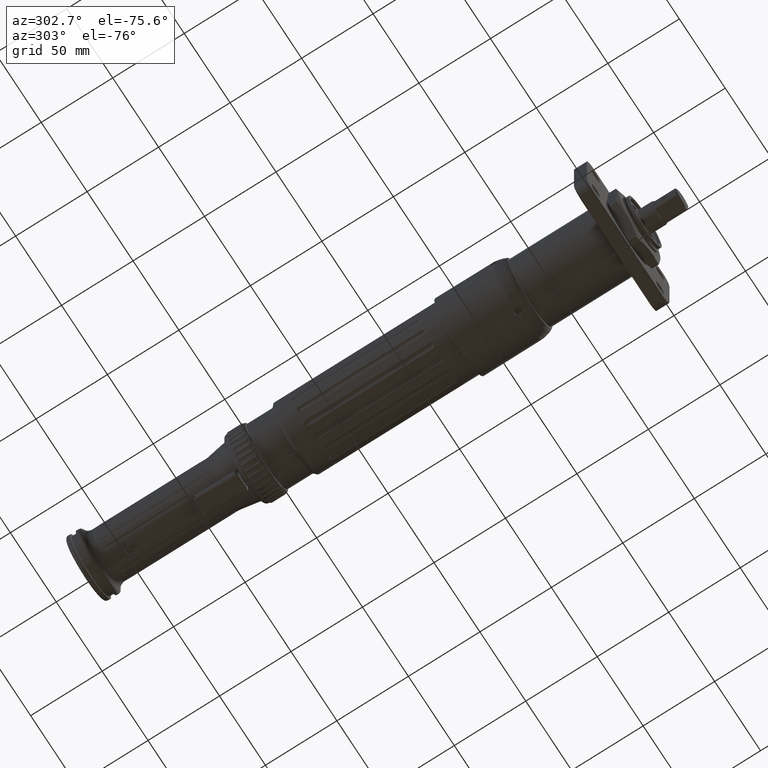
[diagram: clean part render]
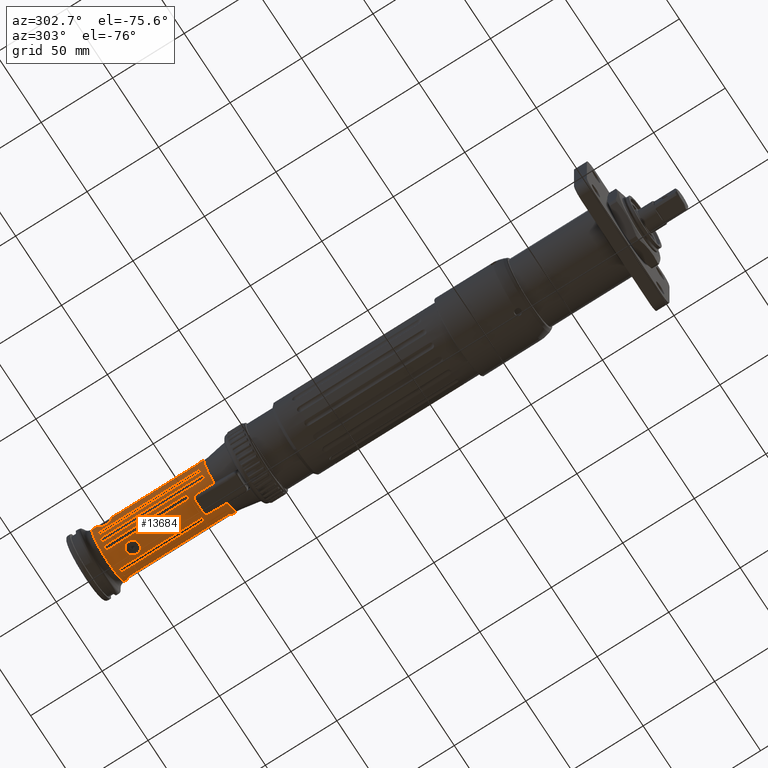
[diagram: same view with one face highlighted and labeled with its STEP entity id]
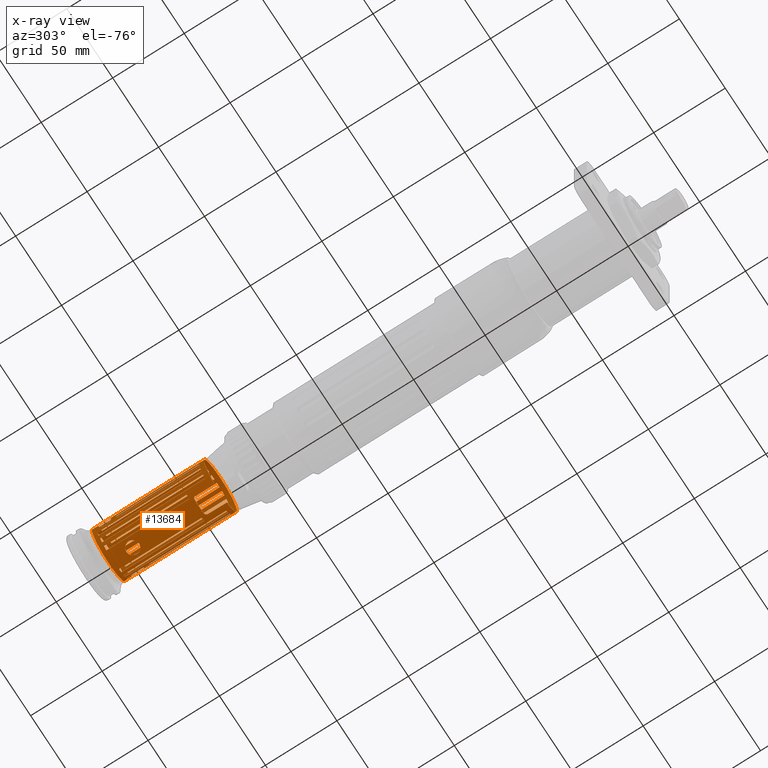
[diagram: x-ray of the same camera — body ghosted, the highlighted face saturated]
A machine part, auxiliary view. The second image highlights one B-rep face of the part: STEP entity #13684.
The next image is the same camera in x-ray: the body ghosted, the highlighted face saturated — about 0% of this face is hidden behind the body in this view.
In plain terms, the highlighted cylindrical surface (bore or boss wall) has radius 18 mm, axis along (-0, 1, -0).
Its self-contained STEP definition (entity closure, byte-faithful):
#123=LINE('',#20876,#866);
#475=LINE('',#23682,#1218);
#550=LINE('',#24184,#1293);
#554=LINE('',#24196,#1297);
#565=LINE('',#24623,#1308);
#585=LINE('',#24829,#1328);
#587=LINE('',#24834,#1330);
#590=LINE('',#24845,#1333);
#595=LINE('',#24854,#1338);
#599=LINE('',#24867,#1342);
#601=LINE('',#24872,#1344);
#606=LINE('',#24886,#1349);
#608=LINE('',#24891,#1351);
#613=LINE('',#24905,#1356);
#615=LINE('',#24910,#1358);
#620=LINE('',#24924,#1363);
#622=LINE('',#24929,#1365);
#627=LINE('',#24943,#1370);
#629=LINE('',#24948,#1372);
#634=LINE('',#24962,#1377);
#636=LINE('',#24967,#1379);
#641=LINE('',#24981,#1384);
#643=LINE('',#24986,#1386);
#646=LINE('',#24996,#1389);
#651=LINE('',#25010,#1394);
#653=LINE('',#25015,#1396);
#658=LINE('',#25029,#1401);
#660=LINE('',#25034,#1403);
#665=LINE('',#25048,#1408);
#667=LINE('',#25053,#1410);
#672=LINE('',#25067,#1415);
#674=LINE('',#25072,#1417);
#679=LINE('',#25086,#1422);
#681=LINE('',#25091,#1424);
#686=LINE('',#25105,#1429);
#688=LINE('',#25110,#1431);
#693=LINE('',#25124,#1436);
#695=LINE('',#25129,#1438);
#700=LINE('',#25143,#1443);
#702=LINE('',#25148,#1445);
#866=VECTOR('',#15994,10.);
#1218=VECTOR('',#17770,10.);
#1293=VECTOR('',#18387,10.);
#1297=VECTOR('',#18399,10.);
#1308=VECTOR('',#18494,10.);
#1328=VECTOR('',#18598,10.);
#1330=VECTOR('',#18602,10.);
#1333=VECTOR('',#18615,10.);
#1338=VECTOR('',#18622,10.);
#1342=VECTOR('',#18636,10.);
#1344=VECTOR('',#18640,10.);
#1349=VECTOR('',#18655,10.);
#1351=VECTOR('',#18659,10.);
#1356=VECTOR('',#18674,10.);
#1358=VECTOR('',#18678,10.);
#1363=VECTOR('',#18693,10.);
#1365=VECTOR('',#18697,10.);
#1370=VECTOR('',#18712,10.);
#1372=VECTOR('',#18716,10.);
#1377=VECTOR('',#18731,10.);
#1379=VECTOR('',#18735,10.);
#1384=VECTOR('',#18750,10.);
#1386=VECTOR('',#18754,10.);
#1389=VECTOR('',#18767,10.);
#1394=VECTOR('',#18782,10.);
#1396=VECTOR('',#18786,10.);
#1401=VECTOR('',#18801,10.);
#1403=VECTOR('',#18805,10.);
#1408=VECTOR('',#18820,10.);
#1410=VECTOR('',#18824,10.);
#1415=VECTOR('',#18839,10.);
#1417=VECTOR('',#18843,10.);
#1422=VECTOR('',#18858,10.);
#1424=VECTOR('',#18862,10.);
#1429=VECTOR('',#18877,10.);
#1431=VECTOR('',#18881,10.);
#1436=VECTOR('',#18896,10.);
#1438=VECTOR('',#18900,10.);
#1443=VECTOR('',#18915,10.);
#1445=VECTOR('',#18919,10.);
#1917=CYLINDRICAL_SURFACE('',#15257,18.);
#2014=CIRCLE('',#14076,18.);
#2281=CIRCLE('',#14457,18.);
#2623=CIRCLE('',#15109,18.);
#2638=CIRCLE('',#15152,18.);
#2639=CIRCLE('',#15154,18.);
#2640=CIRCLE('',#15158,18.);
#2641=CIRCLE('',#15160,18.);
#2642=CIRCLE('',#15164,18.);
#2643=CIRCLE('',#15166,18.);
#2644=CIRCLE('',#15170,18.);
#2645=CIRCLE('',#15172,18.);
#2646=CIRCLE('',#15176,18.);
#2647=CIRCLE('',#15178,18.);
#2648=CIRCLE('',#15182,18.);
#2649=CIRCLE('',#15184,18.);
#2650=CIRCLE('',#15188,18.);
#2651=CIRCLE('',#15190,18.);
#2652=CIRCLE('',#15194,18.);
#2653=CIRCLE('',#15196,18.);
#2654=CIRCLE('',#15200,18.);
#2655=CIRCLE('',#15202,18.);
#2656=CIRCLE('',#15205,18.);
#2657=CIRCLE('',#15207,18.);
#2658=CIRCLE('',#15211,18.);
#2659=CIRCLE('',#15213,18.);
#2660=CIRCLE('',#15217,18.);
#2661=CIRCLE('',#15219,18.);
#2662=CIRCLE('',#15223,18.);
#2663=CIRCLE('',#15225,18.);
#2664=CIRCLE('',#15229,18.);
#2665=CIRCLE('',#15231,18.);
#2666=CIRCLE('',#15235,18.);
#2667=CIRCLE('',#15237,18.);
#2668=CIRCLE('',#15241,18.);
#2669=CIRCLE('',#15243,18.);
#2670=CIRCLE('',#15247,18.);
#2671=CIRCLE('',#15249,18.);
#2672=CIRCLE('',#15253,18.);
#2673=CIRCLE('',#15255,18.);
#3493=FACE_BOUND('',#5130,.T.);
#3494=FACE_BOUND('',#5131,.T.);
#3495=FACE_BOUND('',#5132,.T.);
#3496=FACE_BOUND('',#5133,.T.);
#3497=FACE_BOUND('',#5134,.T.);
#3498=FACE_BOUND('',#5135,.T.);
#3499=FACE_BOUND('',#5136,.T.);
#3500=FACE_BOUND('',#5137,.T.);
#3501=FACE_BOUND('',#5138,.T.);
#3502=FACE_BOUND('',#5139,.T.);
#3503=FACE_BOUND('',#5140,.T.);
#3504=FACE_BOUND('',#5141,.T.);
#3505=FACE_BOUND('',#5142,.T.);
#3506=FACE_BOUND('',#5143,.T.);
#3507=FACE_BOUND('',#5144,.T.);
#3508=FACE_BOUND('',#5145,.T.);
#3509=FACE_BOUND('',#5146,.T.);
#3510=FACE_BOUND('',#5147,.T.);
#3511=FACE_BOUND('',#5148,.T.);
#3512=FACE_BOUND('',#5149,.T.);
#3513=FACE_BOUND('',#5150,.T.);
#3514=FACE_BOUND('',#5151,.T.);
#4086=FACE_OUTER_BOUND('',#5129,.T.);
#5129=EDGE_LOOP('',(#11150,#11151,#11152,#11153,#11154,#11155,#11156,#11157));
#5130=EDGE_LOOP('',(#11158,#11159));
#5131=EDGE_LOOP('',(#11160,#11161));
#5132=EDGE_LOOP('',(#11162,#11163));
#5133=EDGE_LOOP('',(#11164,#11165,#11166,#11167));
#5134=EDGE_LOOP('',(#11168,#11169,#11170,#11171));
#5135=EDGE_LOOP('',(#11172,#11173,#11174,#11175));
#5136=EDGE_LOOP('',(#11176,#11177,#11178,#11179));
#5137=EDGE_LOOP('',(#11180,#11181,#11182,#11183));
#5138=EDGE_LOOP('',(#11184,#11185,#11186,#11187));
#5139=EDGE_LOOP('',(#11188,#11189,#11190,#11191));
#5140=EDGE_LOOP('',(#11192,#11193,#11194,#11195));
#5141=EDGE_LOOP('',(#11196,#11197,#11198,#11199));
#5142=EDGE_LOOP('',(#11200,#11201,#11202,#11203));
#5143=EDGE_LOOP('',(#11204,#11205,#11206,#11207));
#5144=EDGE_LOOP('',(#11208,#11209,#11210,#11211));
#5145=EDGE_LOOP('',(#11212,#11213,#11214,#11215));
#5146=EDGE_LOOP('',(#11216,#11217,#11218,#11219));
#5147=EDGE_LOOP('',(#11220,#11221,#11222,#11223));
#5148=EDGE_LOOP('',(#11224,#11225,#11226,#11227));
#5149=EDGE_LOOP('',(#11228,#11229,#11230,#11231));
#5150=EDGE_LOOP('',(#11232,#11233,#11234,#11235));
#5151=EDGE_LOOP('',(#11236));
#5481=B_SPLINE_CURVE_WITH_KNOTS('',3,(#20845,#20846,#20847,#20848,#20849,
#20850,#20851,#20852,#20853,#20854),.UNSPECIFIED.,.F.,.F.,(4,2,2,2,4),(0.305642386572825,
0.385374742263691,0.465107097954556,0.540499165419982,0.615891232885407),
 .UNSPECIFIED.);
#5482=B_SPLINE_CURVE_WITH_KNOTS('',3,(#20863,#20864,#20865,#20866,#20867,
#20868,#20869,#20870,#20871,#20872),.UNSPECIFIED.,.F.,.F.,(4,2,2,2,4),(0.615891232885407,
0.691283300350833,0.766675367816259,0.846407723507124,0.926140079197989),
 .UNSPECIFIED.);
#5548=B_SPLINE_CURVE_WITH_KNOTS('',3,(#24676,#24677,#24678,#24679,#24680,
#24681,#24682,#24683,#24684,#24685,#24686,#24687,#24688,#24689,#24690,#24691,
#24692,#24693),.UNSPECIFIED.,.F.,.F.,(4,2,2,2,2,2,2,2,4),(0.681159195238395,
0.851437088441764,1.02171498164513,1.19201668606096,1.36231839047679,1.53262009489262,
1.70292179930845,1.87319969251182,2.04347758571518),.UNSPECIFIED.);
#5549=B_SPLINE_CURVE_WITH_KNOTS('',3,(#24694,#24695,#24696,#24697,#24698,
#24699,#24700,#24701,#24702,#24703,#24704,#24705,#24706,#24707,#24708,#24709,
#24710,#24711,#24712),.UNSPECIFIED.,.F.,.F.,(4,2,2,2,3,2,2,2,4),(2.04347758571518,
2.21375547891855,2.38403337212192,2.55433507653775,2.72463678095358,2.89493848536941,
3.06524018978524,3.23551808298861,3.40579597619198),.UNSPECIFIED.);
#5550=B_SPLINE_CURVE_WITH_KNOTS('',3,(#24719,#24720,#24721,#24722,#24723,
#24724,#24725,#24726,#24727,#24728,#24729,#24730,#24731,#24732,#24733,#24734,
#24735,#24736),.UNSPECIFIED.,.F.,.F.,(4,2,2,2,2,2,2,2,4),(0.681159195238395,
0.851437088441765,1.02171498164513,1.19201668606096,1.36231839047679,1.53262009489262,
1.70292179930844,1.87319969251181,2.04347758571518),.UNSPECIFIED.);
#5551=B_SPLINE_CURVE_WITH_KNOTS('',3,(#24737,#24738,#24739,#24740,#24741,
#24742,#24743,#24744,#24745,#24746,#24747,#24748,#24749,#24750,#24751,#24752,
#24753,#24754,#24755),.UNSPECIFIED.,.F.,.F.,(4,2,2,2,3,2,2,2,4),(2.04347758571518,
2.21375547891855,2.38403337212192,2.55433507653775,2.72463678095358,2.89493848536941,
3.06524018978523,3.2355180829886,3.40579597619197),.UNSPECIFIED.);
#5552=B_SPLINE_CURVE_WITH_KNOTS('',3,(#24762,#24763,#24764,#24765,#24766,
#24767,#24768,#24769,#24770,#24771,#24772,#24773,#24774,#24775,#24776,#24777,
#24778,#24779),.UNSPECIFIED.,.F.,.F.,(4,2,2,2,2,2,2,2,4),(0.681159195238395,
0.851437088441764,1.02171498164513,1.19201668606096,1.36231839047679,1.53262009489262,
1.70292179930844,1.87319969251181,2.04347758571518),.UNSPECIFIED.);
#5553=B_SPLINE_CURVE_WITH_KNOTS('',3,(#24780,#24781,#24782,#24783,#24784,
#24785,#24786,#24787,#24788,#24789,#24790,#24791,#24792,#24793,#24794,#24795,
#24796,#24797,#24798),.UNSPECIFIED.,.F.,.F.,(4,2,2,2,3,2,2,2,4),(2.04347758571518,
2.21375547891855,2.38403337212192,2.55433507653775,2.72463678095358,2.89493848536941,
3.06524018978523,3.2355180829886,3.40579597619197),.UNSPECIFIED.);
#5633=VERTEX_POINT('',#20842);
#5634=VERTEX_POINT('',#20844);
#5635=VERTEX_POINT('',#20857);
#5636=VERTEX_POINT('',#20861);
#5637=VERTEX_POINT('',#20874);
#6088=VERTEX_POINT('',#22828);
#6324=VERTEX_POINT('',#23679);
#6325=VERTEX_POINT('',#23681);
#6480=VERTEX_POINT('',#24182);
#6481=VERTEX_POINT('',#24183);
#6485=VERTEX_POINT('',#24194);
#6525=VERTEX_POINT('',#24674);
#6526=VERTEX_POINT('',#24675);
#6528=VERTEX_POINT('',#24717);
#6529=VERTEX_POINT('',#24718);
#6531=VERTEX_POINT('',#24760);
#6532=VERTEX_POINT('',#24761);
#6536=VERTEX_POINT('',#24823);
#6538=VERTEX_POINT('',#24827);
#6539=VERTEX_POINT('',#24831);
#6540=VERTEX_POINT('',#24833);
#6542=VERTEX_POINT('',#24842);
#6543=VERTEX_POINT('',#24844);
#6545=VERTEX_POINT('',#24850);
#6546=VERTEX_POINT('',#24852);
#6548=VERTEX_POINT('',#24861);
#6550=VERTEX_POINT('',#24865);
#6551=VERTEX_POINT('',#24869);
#6552=VERTEX_POINT('',#24871);
#6554=VERTEX_POINT('',#24880);
#6556=VERTEX_POINT('',#24884);
#6557=VERTEX_POINT('',#24888);
#6558=VERTEX_POINT('',#24890);
#6560=VERTEX_POINT('',#24899);
#6562=VERTEX_POINT('',#24903);
#6563=VERTEX_POINT('',#24907);
#6564=VERTEX_POINT('',#24909);
#6566=VERTEX_POINT('',#24918);
#6568=VERTEX_POINT('',#24922);
#6569=VERTEX_POINT('',#24926);
#6570=VERTEX_POINT('',#24928);
#6572=VERTEX_POINT('',#24937);
#6574=VERTEX_POINT('',#24941);
#6575=VERTEX_POINT('',#24945);
#6576=VERTEX_POINT('',#24947);
#6578=VERTEX_POINT('',#24956);
#6580=VERTEX_POINT('',#24960);
#6581=VERTEX_POINT('',#24964);
#6582=VERTEX_POINT('',#24966);
#6584=VERTEX_POINT('',#24975);
#6586=VERTEX_POINT('',#24979);
#6587=VERTEX_POINT('',#24983);
#6588=VERTEX_POINT('',#24985);
#6589=VERTEX_POINT('',#24993);
#6590=VERTEX_POINT('',#24995);
#6592=VERTEX_POINT('',#25004);
#6594=VERTEX_POINT('',#25008);
#6595=VERTEX_POINT('',#25012);
#6596=VERTEX_POINT('',#25014);
#6598=VERTEX_POINT('',#25023);
#6600=VERTEX_POINT('',#25027);
#6601=VERTEX_POINT('',#25031);
#6602=VERTEX_POINT('',#25033);
#6604=VERTEX_POINT('',#25042);
#6606=VERTEX_POINT('',#25046);
#6607=VERTEX_POINT('',#25050);
#6608=VERTEX_POINT('',#25052);
#6610=VERTEX_POINT('',#25061);
#6612=VERTEX_POINT('',#25065);
#6613=VERTEX_POINT('',#25069);
#6614=VERTEX_POINT('',#25071);
#6616=VERTEX_POINT('',#25080);
#6618=VERTEX_POINT('',#25084);
#6619=VERTEX_POINT('',#25088);
#6620=VERTEX_POINT('',#25090);
#6622=VERTEX_POINT('',#25099);
#6624=VERTEX_POINT('',#25103);
#6625=VERTEX_POINT('',#25107);
#6626=VERTEX_POINT('',#25109);
#6628=VERTEX_POINT('',#25118);
#6630=VERTEX_POINT('',#25122);
#6631=VERTEX_POINT('',#25126);
#6632=VERTEX_POINT('',#25128);
#6634=VERTEX_POINT('',#25137);
#6636=VERTEX_POINT('',#25141);
#6637=VERTEX_POINT('',#25145);
#6638=VERTEX_POINT('',#25147);
#6875=EDGE_CURVE('',#5633,#5634,#5481,.T.);
#6878=EDGE_CURVE('',#5633,#5635,#2014,.T.);
#6880=EDGE_CURVE('',#5636,#5635,#5482,.T.);
#6882=EDGE_CURVE('',#5636,#5637,#123,.T.);
#7411=EDGE_CURVE('',#6088,#6088,#2281,.T.);
#7748=EDGE_CURVE('',#6325,#6324,#475,.T.);
#7994=EDGE_CURVE('',#6480,#6481,#550,.T.);
#8001=EDGE_CURVE('',#5637,#6485,#554,.T.);
#8050=EDGE_CURVE('',#6481,#5634,#565,.T.);
#8051=EDGE_CURVE('',#6480,#6485,#2623,.T.);
#8072=EDGE_CURVE('',#6525,#6526,#5548,.T.);
#8073=EDGE_CURVE('',#6526,#6525,#5549,.T.);
#8075=EDGE_CURVE('',#6528,#6529,#5550,.T.);
#8076=EDGE_CURVE('',#6529,#6528,#5551,.T.);
#8078=EDGE_CURVE('',#6531,#6532,#5552,.T.);
#8079=EDGE_CURVE('',#6532,#6531,#5553,.T.);
#8092=EDGE_CURVE('',#6536,#6538,#585,.T.);
#8094=EDGE_CURVE('',#6540,#6539,#587,.T.);
#8096=EDGE_CURVE('',#6538,#6540,#2638,.T.);
#8097=EDGE_CURVE('',#6539,#6536,#2639,.T.);
#8099=EDGE_CURVE('',#6543,#6542,#590,.T.);
#8104=EDGE_CURVE('',#6545,#6546,#595,.T.);
#8105=EDGE_CURVE('',#6542,#6545,#2640,.T.);
#8106=EDGE_CURVE('',#6546,#6543,#2641,.T.);
#8110=EDGE_CURVE('',#6548,#6550,#599,.T.);
#8112=EDGE_CURVE('',#6552,#6551,#601,.T.);
#8114=EDGE_CURVE('',#6550,#6552,#2642,.T.);
#8115=EDGE_CURVE('',#6551,#6548,#2643,.T.);
#8119=EDGE_CURVE('',#6554,#6556,#606,.T.);
#8121=EDGE_CURVE('',#6558,#6557,#608,.T.);
#8123=EDGE_CURVE('',#6556,#6558,#2644,.T.);
#8124=EDGE_CURVE('',#6557,#6554,#2645,.T.);
#8128=EDGE_CURVE('',#6560,#6562,#613,.T.);
#8130=EDGE_CURVE('',#6564,#6563,#615,.T.);
#8132=EDGE_CURVE('',#6562,#6564,#2646,.T.);
#8133=EDGE_CURVE('',#6563,#6560,#2647,.T.);
#8137=EDGE_CURVE('',#6566,#6568,#620,.T.);
#8139=EDGE_CURVE('',#6570,#6569,#622,.T.);
#8141=EDGE_CURVE('',#6568,#6570,#2648,.T.);
#8142=EDGE_CURVE('',#6569,#6566,#2649,.T.);
#8146=EDGE_CURVE('',#6572,#6574,#627,.T.);
#8148=EDGE_CURVE('',#6576,#6575,#629,.T.);
#8150=EDGE_CURVE('',#6574,#6576,#2650,.T.);
#8151=EDGE_CURVE('',#6575,#6572,#2651,.T.);
#8155=EDGE_CURVE('',#6578,#6580,#634,.T.);
#8157=EDGE_CURVE('',#6582,#6581,#636,.T.);
#8159=EDGE_CURVE('',#6580,#6582,#2652,.T.);
#8160=EDGE_CURVE('',#6581,#6578,#2653,.T.);
#8164=EDGE_CURVE('',#6584,#6586,#641,.T.);
#8166=EDGE_CURVE('',#6588,#6587,#643,.T.);
#8168=EDGE_CURVE('',#6586,#6588,#2654,.T.);
#8169=EDGE_CURVE('',#6587,#6584,#2655,.T.);
#8171=EDGE_CURVE('',#6590,#6589,#646,.T.);
#8173=EDGE_CURVE('',#6324,#6590,#2656,.T.);
#8174=EDGE_CURVE('',#6589,#6325,#2657,.T.);
#8178=EDGE_CURVE('',#6592,#6594,#651,.T.);
#8180=EDGE_CURVE('',#6596,#6595,#653,.T.);
#8182=EDGE_CURVE('',#6594,#6596,#2658,.T.);
#8183=EDGE_CURVE('',#6595,#6592,#2659,.T.);
#8187=EDGE_CURVE('',#6598,#6600,#658,.T.);
#8189=EDGE_CURVE('',#6602,#6601,#660,.T.);
#8191=EDGE_CURVE('',#6600,#6602,#2660,.T.);
#8192=EDGE_CURVE('',#6601,#6598,#2661,.T.);
#8196=EDGE_CURVE('',#6604,#6606,#665,.T.);
#8198=EDGE_CURVE('',#6608,#6607,#667,.T.);
#8200=EDGE_CURVE('',#6606,#6608,#2662,.T.);
#8201=EDGE_CURVE('',#6607,#6604,#2663,.T.);
#8205=EDGE_CURVE('',#6610,#6612,#672,.T.);
#8207=EDGE_CURVE('',#6614,#6613,#674,.T.);
#8209=EDGE_CURVE('',#6612,#6614,#2664,.T.);
#8210=EDGE_CURVE('',#6613,#6610,#2665,.T.);
#8214=EDGE_CURVE('',#6616,#6618,#679,.T.);
#8216=EDGE_CURVE('',#6620,#6619,#681,.T.);
#8218=EDGE_CURVE('',#6618,#6620,#2666,.T.);
#8219=EDGE_CURVE('',#6619,#6616,#2667,.T.);
#8223=EDGE_CURVE('',#6622,#6624,#686,.T.);
#8225=EDGE_CURVE('',#6626,#6625,#688,.T.);
#8227=EDGE_CURVE('',#6624,#6626,#2668,.T.);
#8228=EDGE_CURVE('',#6625,#6622,#2669,.T.);
#8232=EDGE_CURVE('',#6628,#6630,#693,.T.);
#8234=EDGE_CURVE('',#6632,#6631,#695,.T.);
#8236=EDGE_CURVE('',#6630,#6632,#2670,.T.);
#8237=EDGE_CURVE('',#6631,#6628,#2671,.T.);
#8241=EDGE_CURVE('',#6634,#6636,#700,.T.);
#8243=EDGE_CURVE('',#6638,#6637,#702,.T.);
#8245=EDGE_CURVE('',#6636,#6638,#2672,.T.);
#8246=EDGE_CURVE('',#6637,#6634,#2673,.T.);
#11150=ORIENTED_EDGE('',*,*,#8051,.F.);
#11151=ORIENTED_EDGE('',*,*,#7994,.T.);
#11152=ORIENTED_EDGE('',*,*,#8050,.T.);
#11153=ORIENTED_EDGE('',*,*,#6875,.F.);
#11154=ORIENTED_EDGE('',*,*,#6878,.T.);
#11155=ORIENTED_EDGE('',*,*,#6880,.F.);
#11156=ORIENTED_EDGE('',*,*,#6882,.T.);
#11157=ORIENTED_EDGE('',*,*,#8001,.T.);
#11158=ORIENTED_EDGE('',*,*,#8072,.T.);
#11159=ORIENTED_EDGE('',*,*,#8073,.T.);
#11160=ORIENTED_EDGE('',*,*,#8075,.T.);
#11161=ORIENTED_EDGE('',*,*,#8076,.T.);
#11162=ORIENTED_EDGE('',*,*,#8078,.T.);
#11163=ORIENTED_EDGE('',*,*,#8079,.T.);
#11164=ORIENTED_EDGE('',*,*,#8094,.T.);
#11165=ORIENTED_EDGE('',*,*,#8097,.T.);
#11166=ORIENTED_EDGE('',*,*,#8092,.T.);
#11167=ORIENTED_EDGE('',*,*,#8096,.T.);
#11168=ORIENTED_EDGE('',*,*,#8104,.T.);
#11169=ORIENTED_EDGE('',*,*,#8106,.T.);
#11170=ORIENTED_EDGE('',*,*,#8099,.T.);
#11171=ORIENTED_EDGE('',*,*,#8105,.T.);
#11172=ORIENTED_EDGE('',*,*,#8112,.T.);
#11173=ORIENTED_EDGE('',*,*,#8115,.T.);
#11174=ORIENTED_EDGE('',*,*,#8110,.T.);
#11175=ORIENTED_EDGE('',*,*,#8114,.T.);
#11176=ORIENTED_EDGE('',*,*,#8121,.T.);
#11177=ORIENTED_EDGE('',*,*,#8124,.T.);
#11178=ORIENTED_EDGE('',*,*,#8119,.T.);
#11179=ORIENTED_EDGE('',*,*,#8123,.T.);
#11180=ORIENTED_EDGE('',*,*,#8130,.T.);
#11181=ORIENTED_EDGE('',*,*,#8133,.T.);
#11182=ORIENTED_EDGE('',*,*,#8128,.T.);
#11183=ORIENTED_EDGE('',*,*,#8132,.T.);
#11184=ORIENTED_EDGE('',*,*,#8139,.T.);
#11185=ORIENTED_EDGE('',*,*,#8142,.T.);
#11186=ORIENTED_EDGE('',*,*,#8137,.T.);
#11187=ORIENTED_EDGE('',*,*,#8141,.T.);
#11188=ORIENTED_EDGE('',*,*,#8148,.T.);
#11189=ORIENTED_EDGE('',*,*,#8151,.T.);
#11190=ORIENTED_EDGE('',*,*,#8146,.T.);
#11191=ORIENTED_EDGE('',*,*,#8150,.T.);
#11192=ORIENTED_EDGE('',*,*,#8157,.T.);
#11193=ORIENTED_EDGE('',*,*,#8160,.T.);
#11194=ORIENTED_EDGE('',*,*,#8155,.T.);
#11195=ORIENTED_EDGE('',*,*,#8159,.T.);
#11196=ORIENTED_EDGE('',*,*,#8166,.T.);
#11197=ORIENTED_EDGE('',*,*,#8169,.T.);
#11198=ORIENTED_EDGE('',*,*,#8164,.T.);
#11199=ORIENTED_EDGE('',*,*,#8168,.T.);
#11200=ORIENTED_EDGE('',*,*,#8171,.T.);
#11201=ORIENTED_EDGE('',*,*,#8174,.T.);
#11202=ORIENTED_EDGE('',*,*,#7748,.T.);
#11203=ORIENTED_EDGE('',*,*,#8173,.T.);
#11204=ORIENTED_EDGE('',*,*,#8180,.T.);
#11205=ORIENTED_EDGE('',*,*,#8183,.T.);
#11206=ORIENTED_EDGE('',*,*,#8178,.T.);
#11207=ORIENTED_EDGE('',*,*,#8182,.T.);
#11208=ORIENTED_EDGE('',*,*,#8189,.T.);
#11209=ORIENTED_EDGE('',*,*,#8192,.T.);
#11210=ORIENTED_EDGE('',*,*,#8187,.T.);
#11211=ORIENTED_EDGE('',*,*,#8191,.T.);
#11212=ORIENTED_EDGE('',*,*,#8198,.T.);
#11213=ORIENTED_EDGE('',*,*,#8201,.T.);
#11214=ORIENTED_EDGE('',*,*,#8196,.T.);
#11215=ORIENTED_EDGE('',*,*,#8200,.T.);
#11216=ORIENTED_EDGE('',*,*,#8207,.T.);
#11217=ORIENTED_EDGE('',*,*,#8210,.T.);
#11218=ORIENTED_EDGE('',*,*,#8205,.T.);
#11219=ORIENTED_EDGE('',*,*,#8209,.T.);
#11220=ORIENTED_EDGE('',*,*,#8216,.T.);
#11221=ORIENTED_EDGE('',*,*,#8219,.T.);
#11222=ORIENTED_EDGE('',*,*,#8214,.T.);
#11223=ORIENTED_EDGE('',*,*,#8218,.T.);
#11224=ORIENTED_EDGE('',*,*,#8225,.T.);
#11225=ORIENTED_EDGE('',*,*,#8228,.T.);
#11226=ORIENTED_EDGE('',*,*,#8223,.T.);
#11227=ORIENTED_EDGE('',*,*,#8227,.T.);
#11228=ORIENTED_EDGE('',*,*,#8234,.T.);
#11229=ORIENTED_EDGE('',*,*,#8237,.T.);
#11230=ORIENTED_EDGE('',*,*,#8232,.T.);
#11231=ORIENTED_EDGE('',*,*,#8236,.T.);
#11232=ORIENTED_EDGE('',*,*,#8243,.T.);
#11233=ORIENTED_EDGE('',*,*,#8246,.T.);
#11234=ORIENTED_EDGE('',*,*,#8241,.T.);
#11235=ORIENTED_EDGE('',*,*,#8245,.T.);
#11236=ORIENTED_EDGE('',*,*,#7411,.F.);
#13684=ADVANCED_FACE('',(#4086,#3493,#3494,#3495,#3496,#3497,#3498,#3499,
#3500,#3501,#3502,#3503,#3504,#3505,#3506,#3507,#3508,#3509,#3510,#3511,
#3512,#3513,#3514),#1917,.T.);
#14076=AXIS2_PLACEMENT_3D('',#20859,#15986,#15987);
#14457=AXIS2_PLACEMENT_3D('',#22829,#16940,#16941);
#15109=AXIS2_PLACEMENT_3D('',#24625,#18497,#18498);
#15152=AXIS2_PLACEMENT_3D('',#24837,#18606,#18607);
#15154=AXIS2_PLACEMENT_3D('',#24839,#18610,#18611);
#15158=AXIS2_PLACEMENT_3D('',#24856,#18625,#18626);
#15160=AXIS2_PLACEMENT_3D('',#24858,#18629,#18630);
#15164=AXIS2_PLACEMENT_3D('',#24875,#18644,#18645);
#15166=AXIS2_PLACEMENT_3D('',#24877,#18648,#18649);
#15170=AXIS2_PLACEMENT_3D('',#24894,#18663,#18664);
#15172=AXIS2_PLACEMENT_3D('',#24896,#18667,#18668);
#15176=AXIS2_PLACEMENT_3D('',#24913,#18682,#18683);
#15178=AXIS2_PLACEMENT_3D('',#24915,#18686,#18687);
#15182=AXIS2_PLACEMENT_3D('',#24932,#18701,#18702);
#15184=AXIS2_PLACEMENT_3D('',#24934,#18705,#18706);
#15188=AXIS2_PLACEMENT_3D('',#24951,#18720,#18721);
#15190=AXIS2_PLACEMENT_3D('',#24953,#18724,#18725);
#15194=AXIS2_PLACEMENT_3D('',#24970,#18739,#18740);
#15196=AXIS2_PLACEMENT_3D('',#24972,#18743,#18744);
#15200=AXIS2_PLACEMENT_3D('',#24989,#18758,#18759);
#15202=AXIS2_PLACEMENT_3D('',#24991,#18762,#18763);
#15205=AXIS2_PLACEMENT_3D('',#24999,#18771,#18772);
#15207=AXIS2_PLACEMENT_3D('',#25001,#18775,#18776);
#15211=AXIS2_PLACEMENT_3D('',#25018,#18790,#18791);
#15213=AXIS2_PLACEMENT_3D('',#25020,#18794,#18795);
#15217=AXIS2_PLACEMENT_3D('',#25037,#18809,#18810);
#15219=AXIS2_PLACEMENT_3D('',#25039,#18813,#18814);
#15223=AXIS2_PLACEMENT_3D('',#25056,#18828,#18829);
#15225=AXIS2_PLACEMENT_3D('',#25058,#18832,#18833);
#15229=AXIS2_PLACEMENT_3D('',#25075,#18847,#18848);
#15231=AXIS2_PLACEMENT_3D('',#25077,#18851,#18852);
#15235=AXIS2_PLACEMENT_3D('',#25094,#18866,#18867);
#15237=AXIS2_PLACEMENT_3D('',#25096,#18870,#18871);
#15241=AXIS2_PLACEMENT_3D('',#25113,#18885,#18886);
#15243=AXIS2_PLACEMENT_3D('',#25115,#18889,#18890);
#15247=AXIS2_PLACEMENT_3D('',#25132,#18904,#18905);
#15249=AXIS2_PLACEMENT_3D('',#25134,#18908,#18909);
#15253=AXIS2_PLACEMENT_3D('',#25151,#18923,#18924);
#15255=AXIS2_PLACEMENT_3D('',#25153,#18927,#18928);
#15257=AXIS2_PLACEMENT_3D('',#25159,#18934,#18935);
#15986=DIRECTION('center_axis',(-2.48189058167347E-16,1.,-4.53253714035936E-16));
#15987=DIRECTION('ref_axis',(1.72084568816899E-15,4.53253714035936E-16,
1.));
#15994=DIRECTION('',(2.48189058167347E-16,-1.,4.53253714035936E-16));
#16940=DIRECTION('center_axis',(-2.48189058167347E-16,1.,-4.53253714035936E-16));
#16941=DIRECTION('ref_axis',(-1.,-2.48189058167347E-16,1.72084568816899E-15));
#17770=DIRECTION('',(-2.48189058167347E-16,1.,-4.53253714035936E-16));
#18387=DIRECTION('',(-2.48189058167347E-16,1.,-4.53253714035936E-16));
#18399=DIRECTION('',(2.48189058167347E-16,-1.,4.53253714035936E-16));
#18494=DIRECTION('',(-2.48189058167347E-16,1.,-4.53253714035936E-16));
#18497=DIRECTION('center_axis',(2.48189058167347E-16,-1.,4.53253714035936E-16));
#18498=DIRECTION('ref_axis',(1.41468398838215E-15,4.53253714035936E-16,
1.));
#18598=DIRECTION('',(-2.48189058167347E-16,1.,-4.53253714035936E-16));
#18602=DIRECTION('',(2.48189058167347E-16,-1.,4.53253714035936E-16));
#18606=DIRECTION('center_axis',(-2.48189058167347E-16,1.,-4.53253714035936E-16));
#18607=DIRECTION('ref_axis',(1.72084568816899E-15,4.53253714035936E-16,
1.));
#18610=DIRECTION('center_axis',(2.48189058167347E-16,-1.,4.53253714035936E-16));
#18611=DIRECTION('ref_axis',(1.72084568816899E-15,4.53253714035936E-16,
1.));
#18615=DIRECTION('',(2.48189058167347E-16,-1.,4.53253714035936E-16));
#18622=DIRECTION('',(-2.48189058167347E-16,1.,-4.53253714035936E-16));
#18625=DIRECTION('center_axis',(2.48189058167347E-16,-1.,4.53253714035936E-16));
#18626=DIRECTION('ref_axis',(1.72084568816899E-15,4.53253714035936E-16,
1.));
#18629=DIRECTION('center_axis',(-2.48189058167347E-16,1.,-4.53253714035936E-16));
#18630=DIRECTION('ref_axis',(1.72084568816899E-15,4.53253714035936E-16,
1.));
#18636=DIRECTION('',(-2.48189058167347E-16,1.,-4.53253714035936E-16));
#18640=DIRECTION('',(2.48189058167347E-16,-1.,4.53253714035936E-16));
#18644=DIRECTION('center_axis',(-2.48189058167347E-16,1.,-4.53253714035936E-16));
#18645=DIRECTION('ref_axis',(1.72084568816899E-15,4.53253714035936E-16,
1.));
#18648=DIRECTION('center_axis',(2.48189058167347E-16,-1.,4.53253714035936E-16));
#18649=DIRECTION('ref_axis',(1.72084568816899E-15,4.53253714035936E-16,
1.));
#18655=DIRECTION('',(-2.48189058167347E-16,1.,-4.53253714035936E-16));
#18659=DIRECTION('',(2.48189058167347E-16,-1.,4.53253714035936E-16));
#18663=DIRECTION('center_axis',(-2.48189058167347E-16,1.,-4.53253714035936E-16));
#18664=DIRECTION('ref_axis',(1.72084568816899E-15,4.53253714035936E-16,
1.));
#18667=DIRECTION('center_axis',(2.48189058167347E-16,-1.,4.53253714035936E-16));
#18668=DIRECTION('ref_axis',(1.72084568816899E-15,4.53253714035936E-16,
1.));
#18674=DIRECTION('',(-2.48189058167347E-16,1.,-4.53253714035936E-16));
#18678=DIRECTION('',(2.48189058167347E-16,-1.,4.53253714035936E-16));
#18682=DIRECTION('center_axis',(-2.48189058167347E-16,1.,-4.53253714035936E-16));
#18683=DIRECTION('ref_axis',(1.72084568816899E-15,4.53253714035936E-16,
1.));
#18686=DIRECTION('center_axis',(2.48189058167347E-16,-1.,4.53253714035936E-16));
#18687=DIRECTION('ref_axis',(1.72084568816899E-15,4.53253714035936E-16,
1.));
#18693=DIRECTION('',(-2.48189058167347E-16,1.,-4.53253714035936E-16));
#18697=DIRECTION('',(2.48189058167347E-16,-1.,4.53253714035936E-16));
#18701=DIRECTION('center_axis',(-2.48189058167347E-16,1.,-4.53253714035936E-16));
#18702=DIRECTION('ref_axis',(1.72084568816899E-15,4.53253714035936E-16,
1.));
#18705=DIRECTION('center_axis',(2.48189058167347E-16,-1.,4.53253714035936E-16));
#18706=DIRECTION('ref_axis',(1.72084568816899E-15,4.53253714035936E-16,
1.));
#18712=DIRECTION('',(-2.48189058167347E-16,1.,-4.53253714035936E-16));
#18716=DIRECTION('',(2.48189058167347E-16,-1.,4.53253714035936E-16));
#18720=DIRECTION('center_axis',(-2.48189058167347E-16,1.,-4.53253714035936E-16));
#18721=DIRECTION('ref_axis',(1.72084568816899E-15,4.53253714035936E-16,
1.));
#18724=DIRECTION('center_axis',(2.48189058167347E-16,-1.,4.53253714035936E-16));
#18725=DIRECTION('ref_axis',(1.72084568816899E-15,4.53253714035936E-16,
1.));
#18731=DIRECTION('',(-2.48189058167347E-16,1.,-4.53253714035936E-16));
#18735=DIRECTION('',(2.48189058167347E-16,-1.,4.53253714035936E-16));
#18739=DIRECTION('center_axis',(-2.48189058167347E-16,1.,-4.53253714035936E-16));
#18740=DIRECTION('ref_axis',(1.72084568816899E-15,4.53253714035936E-16,
1.));
#18743=DIRECTION('center_axis',(2.48189058167347E-16,-1.,4.53253714035936E-16));
#18744=DIRECTION('ref_axis',(1.72084568816899E-15,4.53253714035936E-16,
1.));
#18750=DIRECTION('',(-2.48189058167347E-16,1.,-4.53253714035936E-16));
#18754=DIRECTION('',(2.48189058167347E-16,-1.,4.53253714035936E-16));
#18758=DIRECTION('center_axis',(-2.48189058167347E-16,1.,-4.53253714035936E-16));
#18759=DIRECTION('ref_axis',(1.72084568816899E-15,4.53253714035936E-16,
1.));
#18762=DIRECTION('center_axis',(2.48189058167347E-16,-1.,4.53253714035936E-16));
#18763=DIRECTION('ref_axis',(1.72084568816899E-15,4.53253714035936E-16,
1.));
#18767=DIRECTION('',(2.48189058167347E-16,-1.,4.53253714035936E-16));
#18771=DIRECTION('center_axis',(-2.48189058167347E-16,1.,-4.53253714035936E-16));
#18772=DIRECTION('ref_axis',(1.72084568816899E-15,4.53253714035936E-16,
1.));
#18775=DIRECTION('center_axis',(2.48189058167347E-16,-1.,4.53253714035936E-16));
#18776=DIRECTION('ref_axis',(1.72084568816899E-15,4.53253714035936E-16,
1.));
#18782=DIRECTION('',(-2.48189058167347E-16,1.,-4.53253714035936E-16));
#18786=DIRECTION('',(2.48189058167347E-16,-1.,4.53253714035936E-16));
#18790=DIRECTION('center_axis',(-2.48189058167347E-16,1.,-4.53253714035936E-16));
#18791=DIRECTION('ref_axis',(1.72084568816899E-15,4.53253714035936E-16,
1.));
#18794=DIRECTION('center_axis',(2.48189058167347E-16,-1.,4.53253714035936E-16));
#18795=DIRECTION('ref_axis',(1.72084568816899E-15,4.53253714035936E-16,
1.));
#18801=DIRECTION('',(-2.48189058167347E-16,1.,-4.53253714035936E-16));
#18805=DIRECTION('',(2.48189058167347E-16,-1.,4.53253714035936E-16));
#18809=DIRECTION('center_axis',(-2.48189058167347E-16,1.,-4.53253714035936E-16));
#18810=DIRECTION('ref_axis',(1.72084568816899E-15,4.53253714035936E-16,
1.));
#18813=DIRECTION('center_axis',(2.48189058167347E-16,-1.,4.53253714035936E-16));
#18814=DIRECTION('ref_axis',(1.72084568816899E-15,4.53253714035936E-16,
1.));
#18820=DIRECTION('',(-2.48189058167347E-16,1.,-4.53253714035936E-16));
#18824=DIRECTION('',(2.48189058167347E-16,-1.,4.53253714035936E-16));
#18828=DIRECTION('center_axis',(-2.48189058167347E-16,1.,-4.53253714035936E-16));
#18829=DIRECTION('ref_axis',(1.72084568816899E-15,4.53253714035936E-16,
1.));
#18832=DIRECTION('center_axis',(2.48189058167347E-16,-1.,4.53253714035936E-16));
#18833=DIRECTION('ref_axis',(1.72084568816899E-15,4.53253714035936E-16,
1.));
#18839=DIRECTION('',(-2.48189058167347E-16,1.,-4.53253714035936E-16));
#18843=DIRECTION('',(2.48189058167347E-16,-1.,4.53253714035936E-16));
#18847=DIRECTION('center_axis',(-2.48189058167347E-16,1.,-4.53253714035936E-16));
#18848=DIRECTION('ref_axis',(1.72084568816899E-15,4.53253714035936E-16,
1.));
#18851=DIRECTION('center_axis',(2.48189058167347E-16,-1.,4.53253714035936E-16));
#18852=DIRECTION('ref_axis',(1.72084568816899E-15,4.53253714035936E-16,
1.));
#18858=DIRECTION('',(-2.48189058167347E-16,1.,-4.53253714035936E-16));
#18862=DIRECTION('',(2.48189058167347E-16,-1.,4.53253714035936E-16));
#18866=DIRECTION('center_axis',(-2.48189058167347E-16,1.,-4.53253714035936E-16));
#18867=DIRECTION('ref_axis',(1.72084568816899E-15,4.53253714035936E-16,
1.));
#18870=DIRECTION('center_axis',(2.48189058167347E-16,-1.,4.53253714035936E-16));
#18871=DIRECTION('ref_axis',(1.72084568816899E-15,4.53253714035936E-16,
1.));
#18877=DIRECTION('',(-2.48189058167347E-16,1.,-4.53253714035936E-16));
#18881=DIRECTION('',(2.48189058167347E-16,-1.,4.53253714035936E-16));
#18885=DIRECTION('center_axis',(-2.48189058167347E-16,1.,-4.53253714035936E-16));
#18886=DIRECTION('ref_axis',(1.72084568816899E-15,4.53253714035936E-16,
1.));
#18889=DIRECTION('center_axis',(2.48189058167347E-16,-1.,4.53253714035936E-16));
#18890=DIRECTION('ref_axis',(1.72084568816899E-15,4.53253714035936E-16,
1.));
#18896=DIRECTION('',(-2.48189058167347E-16,1.,-4.53253714035936E-16));
#18900=DIRECTION('',(2.48189058167347E-16,-1.,4.53253714035936E-16));
#18904=DIRECTION('center_axis',(-2.48189058167347E-16,1.,-4.53253714035936E-16));
#18905=DIRECTION('ref_axis',(1.72084568816899E-15,4.53253714035936E-16,
1.));
#18908=DIRECTION('center_axis',(2.48189058167347E-16,-1.,4.53253714035936E-16));
#18909=DIRECTION('ref_axis',(1.72084568816899E-15,4.53253714035936E-16,
1.));
#18915=DIRECTION('',(-2.48189058167347E-16,1.,-4.53253714035936E-16));
#18919=DIRECTION('',(2.48189058167347E-16,-1.,4.53253714035936E-16));
#18923=DIRECTION('center_axis',(-2.48189058167347E-16,1.,-4.53253714035936E-16));
#18924=DIRECTION('ref_axis',(1.72084568816899E-15,4.53253714035936E-16,
1.));
#18927=DIRECTION('center_axis',(2.48189058167347E-16,-1.,4.53253714035936E-16));
#18928=DIRECTION('ref_axis',(1.72084568816899E-15,4.53253714035936E-16,
1.));
#18934=DIRECTION('center_axis',(-2.48189058167347E-16,1.,-4.53253714035936E-16));
#18935=DIRECTION('ref_axis',(1.72084568816899E-15,4.53253714035936E-16,
1.));
#20842=CARTESIAN_POINT('',(5.00000000000035,300.099999999999,-17.2916164657905));
#20844=CARTESIAN_POINT('',(7.00000000000036,298.099999999999,-16.5831239517769));
#20845=CARTESIAN_POINT('Ctrl Pts',(5.00000000000035,300.099999999999,-17.2916164657905));
#20846=CARTESIAN_POINT('Ctrl Pts',(5.25531505824488,300.099999999999,-17.2177902105212));
#20847=CARTESIAN_POINT('Ctrl Pts',(5.52615703390853,300.048328008202,-17.132734167699));
#20848=CARTESIAN_POINT('Ctrl Pts',(6.02371187102377,299.839205907236,-16.9641942611035));
#20849=CARTESIAN_POINT('Ctrl Pts',(6.25053596499727,299.681797370522,-16.8809873243691));
#20850=CARTESIAN_POINT('Ctrl Pts',(6.59976297259729,299.32462229034,-16.7474221928201));
#20851=CARTESIAN_POINT('Ctrl Pts',(6.74949707627954,299.104226885211,-16.6870010527236));
#20852=CARTESIAN_POINT('Ctrl Pts',(6.94968335029815,298.617635188573,-16.6046263577842));
#20853=CARTESIAN_POINT('Ctrl Pts',(7.00000000000035,298.35130689155,-16.5831239517769));
#20854=CARTESIAN_POINT('Ctrl Pts',(7.00000000000035,298.099999999999,-16.5831239517769));
#20857=CARTESIAN_POINT('',(-4.99999999999965,300.099999999999,-17.2916164657905));
#20859=CARTESIAN_POINT('Origin',(3.81193156042371E-13,300.099999999999,
9.17743456128635E-14));
#20861=CARTESIAN_POINT('',(-6.99999999999965,298.099999999999,-16.5831239517769));
#20863=CARTESIAN_POINT('Ctrl Pts',(-6.99999999999965,298.099999999999,-16.5831239517769));
#20864=CARTESIAN_POINT('Ctrl Pts',(-6.99999999999965,298.35130689155,-16.5831239517769));
#20865=CARTESIAN_POINT('Ctrl Pts',(-6.94968335029745,298.617635188573,-16.6046263577842));
#20866=CARTESIAN_POINT('Ctrl Pts',(-6.74949707627884,299.104226885211,-16.6870010527236));
#20867=CARTESIAN_POINT('Ctrl Pts',(-6.59976297259659,299.32462229034,-16.7474221928201));
#20868=CARTESIAN_POINT('Ctrl Pts',(-6.25053596499657,299.681797370522,-16.8809873243691));
#20869=CARTESIAN_POINT('Ctrl Pts',(-6.02371187102307,299.839205907236,-16.9641942611035));
#20870=CARTESIAN_POINT('Ctrl Pts',(-5.52615703390783,300.048328008202,-17.132734167699));
#20871=CARTESIAN_POINT('Ctrl Pts',(-5.25531505824418,300.099999999999,-17.2177902105212));
#20872=CARTESIAN_POINT('Ctrl Pts',(-4.99999999999965,300.099999999999,-17.2916164657905));
#20874=CARTESIAN_POINT('',(-6.99999999999965,297.299999999999,-16.5831239517769));
#20876=CARTESIAN_POINT('',(-6.99999999999966,323.499999999999,-16.5831239517769));
#22828=CARTESIAN_POINT('',(3.96433192141604E-13,363.499999999999,18.0000000000001));
#22829=CARTESIAN_POINT('Origin',(3.65457969754562E-13,363.499999999999,
6.30380601429852E-14));
#23679=CARTESIAN_POINT('',(-9.47926085725827,360.499999999999,15.3017519781248));
#23681=CARTESIAN_POINT('',(-9.47926085725825,288.499999999999,15.3017519781249));
#23682=CARTESIAN_POINT('',(-9.47926085725819,323.499999999999,15.3017519781249));
#24182=CARTESIAN_POINT('',(7.00000000000036,285.155250605963,-16.5831239517769));
#24183=CARTESIAN_POINT('',(7.00000000000036,297.299999999999,-16.5831239517769));
#24184=CARTESIAN_POINT('',(7.00000000000035,323.499999999999,-16.5831239517769));
#24194=CARTESIAN_POINT('',(-6.99999999999965,285.155250605963,-16.5831239517769));
#24196=CARTESIAN_POINT('',(-6.99999999999966,323.499999999999,-16.5831239517769));
#24623=CARTESIAN_POINT('',(7.00000000000035,323.499999999999,-16.5831239517769));
#24625=CARTESIAN_POINT('Origin',(3.84902279319024E-13,285.155250605963,
9.85481087810465E-14));
#24674=CARTESIAN_POINT('',(3.37585110594612E-13,350.999999999999,-17.9999999999999));
#24675=CARTESIAN_POINT('',(3.39818812118118E-13,341.999999999999,-17.9999999999999));
#24676=CARTESIAN_POINT('Ctrl Pts',(3.37369021607969E-13,350.999999999999,
-17.9999999999999));
#24677=CARTESIAN_POINT('Ctrl Pts',(-0.567592977344228,350.999999999999,
-17.9999999999999));
#24678=CARTESIAN_POINT('Ctrl Pts',(-1.17139795117389,350.886075169634,-17.970464704408));
#24679=CARTESIAN_POINT('Ctrl Pts',(-2.27942057070886,350.426075666882,-17.8637626701151));
#24680=CARTESIAN_POINT('Ctrl Pts',(-2.78382972182154,350.080131308856,-17.7880277100484));
#24681=CARTESIAN_POINT('Ctrl Pts',(-3.58018698521584,349.283774045462,-17.6449977232353));
#24682=CARTESIAN_POINT('Ctrl Pts',(-3.92608793302227,348.779388082636,-17.5682015000518));
#24683=CARTESIAN_POINT('Ctrl Pts',(-4.38605574340445,347.671447686046,-17.4590488559557));
#24684=CARTESIAN_POINT('Ctrl Pts',(-4.49999999999966,347.067672348052,-17.4284250579333));
#24685=CARTESIAN_POINT('Ctrl Pts',(-4.49999999999966,345.932327651946,-17.4284250579333));
#24686=CARTESIAN_POINT('Ctrl Pts',(-4.38605574340445,345.328552313952,-17.4590488559557));
#24687=CARTESIAN_POINT('Ctrl Pts',(-3.92608793302227,344.220611917362,-17.5682015000518));
#24688=CARTESIAN_POINT('Ctrl Pts',(-3.58018698521584,343.716225954536,-17.6449977232353));
#24689=CARTESIAN_POINT('Ctrl Pts',(-2.78382972182154,342.919868691142,-17.7880277100484));
#24690=CARTESIAN_POINT('Ctrl Pts',(-2.27942057070886,342.573924333116,-17.8637626701151));
#24691=CARTESIAN_POINT('Ctrl Pts',(-1.17139795117389,342.113924830364,-17.9704647044079));
#24692=CARTESIAN_POINT('Ctrl Pts',(-0.567592977344227,341.999999999999,
-17.9999999999999));
#24693=CARTESIAN_POINT('Ctrl Pts',(3.37924133120282E-13,341.999999999999,
-17.9999999999999));
#24694=CARTESIAN_POINT('Ctrl Pts',(3.39311911901063E-13,341.999999999999,
-17.9999999999999));
#24695=CARTESIAN_POINT('Ctrl Pts',(0.567592977344906,341.999999999999,-17.9999999999999));
#24696=CARTESIAN_POINT('Ctrl Pts',(1.17139795117457,342.113924830364,-17.970464704408));
#24697=CARTESIAN_POINT('Ctrl Pts',(2.27942057070954,342.573924333116,-17.8637626701151));
#24698=CARTESIAN_POINT('Ctrl Pts',(2.78382972182222,342.919868691142,-17.7880277100484));
#24699=CARTESIAN_POINT('Ctrl Pts',(3.58018698521652,343.716225954536,-17.6449977232353));
#24700=CARTESIAN_POINT('Ctrl Pts',(3.92608793302295,344.220611917362,-17.5682015000518));
#24701=CARTESIAN_POINT('Ctrl Pts',(4.38605574340514,345.328552313952,-17.4590488559557));
#24702=CARTESIAN_POINT('Ctrl Pts',(4.50000000000034,345.932327651946,-17.4284250579333));
#24703=CARTESIAN_POINT('Ctrl Pts',(4.50000000000034,346.499999999999,-17.4284250579333));
#24704=CARTESIAN_POINT('Ctrl Pts',(4.50000000000034,347.067672348052,-17.4284250579333));
#24705=CARTESIAN_POINT('Ctrl Pts',(4.38605574340513,347.671447686046,-17.4590488559557));
#24706=CARTESIAN_POINT('Ctrl Pts',(3.92608793302295,348.779388082636,-17.5682015000518));
#24707=CARTESIAN_POINT('Ctrl Pts',(3.58018698521652,349.283774045462,-17.6449977232353));
#24708=CARTESIAN_POINT('Ctrl Pts',(2.78382972182222,350.080131308856,-17.7880277100484));
#24709=CARTESIAN_POINT('Ctrl Pts',(2.27942057070954,350.426075666882,-17.8637626701151));
#24710=CARTESIAN_POINT('Ctrl Pts',(1.17139795117457,350.886075169634,-17.970464704408));
#24711=CARTESIAN_POINT('Ctrl Pts',(0.567592977344906,350.999999999999,-17.9999999999999));
#24712=CARTESIAN_POINT('Ctrl Pts',(3.4028335704761E-13,350.999999999999,
-17.9999999999999));
#24717=CARTESIAN_POINT('',(-17.9999999999996,358.999999999999,9.60529242431888E-14));
#24718=CARTESIAN_POINT('',(-17.9999999999996,349.999999999999,1.00132207669512E-13));
#24719=CARTESIAN_POINT('Ctrl Pts',(-17.9999999999996,358.999999999999,9.63118473862323E-14));
#24720=CARTESIAN_POINT('Ctrl Pts',(-17.9999999999996,358.999999999999,0.567592977344662));
#24721=CARTESIAN_POINT('Ctrl Pts',(-17.9704647044077,358.886075169634,1.17139795117433));
#24722=CARTESIAN_POINT('Ctrl Pts',(-17.8637626701148,358.426075666882,2.2794205707093));
#24723=CARTESIAN_POINT('Ctrl Pts',(-17.7880277100481,358.080131308856,2.78382972182198));
#24724=CARTESIAN_POINT('Ctrl Pts',(-17.644997723235,357.283774045462,3.58018698521628));
#24725=CARTESIAN_POINT('Ctrl Pts',(-17.5682015000515,356.779388082636,3.92608793302271));
#24726=CARTESIAN_POINT('Ctrl Pts',(-17.4590488559554,355.671447686046,4.38605574340489));
#24727=CARTESIAN_POINT('Ctrl Pts',(-17.428425057933,355.067672348052,4.5000000000001));
#24728=CARTESIAN_POINT('Ctrl Pts',(-17.428425057933,353.932327651946,4.5000000000001));
#24729=CARTESIAN_POINT('Ctrl Pts',(-17.4590488559554,353.328552313952,4.38605574340489));
#24730=CARTESIAN_POINT('Ctrl Pts',(-17.5682015000515,352.220611917362,3.92608793302271));
#24731=CARTESIAN_POINT('Ctrl Pts',(-17.644997723235,351.716225954536,3.58018698521628));
#24732=CARTESIAN_POINT('Ctrl Pts',(-17.7880277100481,350.919868691142,2.78382972182198));
#24733=CARTESIAN_POINT('Ctrl Pts',(-17.8637626701148,350.573924333116,2.2794205707093));
#24734=CARTESIAN_POINT('Ctrl Pts',(-17.9704647044077,350.113924830364,1.17139795117433));
#24735=CARTESIAN_POINT('Ctrl Pts',(-17.9999999999996,349.999999999999,0.567592977344667));
#24736=CARTESIAN_POINT('Ctrl Pts',(-17.9999999999996,349.999999999999,1.01862962509358E-13));
#24737=CARTESIAN_POINT('Ctrl Pts',(-17.9999999999996,349.999999999999,1.04638520070921E-13));
#24738=CARTESIAN_POINT('Ctrl Pts',(-17.9999999999996,349.999999999999,-0.56759297734446));
#24739=CARTESIAN_POINT('Ctrl Pts',(-17.9704647044077,350.113924830364,-1.17139795117413));
#24740=CARTESIAN_POINT('Ctrl Pts',(-17.8637626701148,350.573924333116,-2.27942057070911));
#24741=CARTESIAN_POINT('Ctrl Pts',(-17.7880277100481,350.919868691142,-2.78382972182178));
#24742=CARTESIAN_POINT('Ctrl Pts',(-17.644997723235,351.716225954536,-3.58018698521608));
#24743=CARTESIAN_POINT('Ctrl Pts',(-17.5682015000515,352.220611917362,-3.92608793302251));
#24744=CARTESIAN_POINT('Ctrl Pts',(-17.4590488559554,353.328552313952,-4.38605574340469));
#24745=CARTESIAN_POINT('Ctrl Pts',(-17.428425057933,353.932327651946,-4.4999999999999));
#24746=CARTESIAN_POINT('Ctrl Pts',(-17.428425057933,354.499999999999,-4.4999999999999));
#24747=CARTESIAN_POINT('Ctrl Pts',(-17.428425057933,355.067672348052,-4.4999999999999));
#24748=CARTESIAN_POINT('Ctrl Pts',(-17.4590488559554,355.671447686046,-4.3860557434047));
#24749=CARTESIAN_POINT('Ctrl Pts',(-17.5682015000515,356.779388082636,-3.92608793302251));
#24750=CARTESIAN_POINT('Ctrl Pts',(-17.644997723235,357.283774045462,-3.58018698521609));
#24751=CARTESIAN_POINT('Ctrl Pts',(-17.7880277100481,358.080131308856,-2.78382972182179));
#24752=CARTESIAN_POINT('Ctrl Pts',(-17.8637626701148,358.426075666882,-2.27942057070911));
#24753=CARTESIAN_POINT('Ctrl Pts',(-17.9704647044077,358.886075169634,-1.17139795117414));
#24754=CARTESIAN_POINT('Ctrl Pts',(-17.9999999999996,358.999999999999,-0.567592977344471));
#24755=CARTESIAN_POINT('Ctrl Pts',(-17.9999999999996,358.999999999999,9.46465128492946E-14));
#24760=CARTESIAN_POINT('',(18.0000000000004,349.999999999999,3.81817628954285E-14));
#24761=CARTESIAN_POINT('',(18.0000000000004,358.999999999999,3.41024794691051E-14));
#24762=CARTESIAN_POINT('Ctrl Pts',(18.0000000000004,349.999999999999,3.87190279838023E-14));
#24763=CARTESIAN_POINT('Ctrl Pts',(18.0000000000004,349.999999999999,0.567592977344604));
#24764=CARTESIAN_POINT('Ctrl Pts',(17.9704647044084,350.113924830364,1.17139795117427));
#24765=CARTESIAN_POINT('Ctrl Pts',(17.8637626701155,350.573924333116,2.27942057070924));
#24766=CARTESIAN_POINT('Ctrl Pts',(17.7880277100489,350.919868691142,2.78382972182192));
#24767=CARTESIAN_POINT('Ctrl Pts',(17.6449977232357,351.716225954536,3.58018698521622));
#24768=CARTESIAN_POINT('Ctrl Pts',(17.5682015000522,352.220611917362,3.92608793302265));
#24769=CARTESIAN_POINT('Ctrl Pts',(17.4590488559562,353.328552313952,4.38605574340483));
#24770=CARTESIAN_POINT('Ctrl Pts',(17.4284250579338,353.932327651946,4.50000000000004));
#24771=CARTESIAN_POINT('Ctrl Pts',(17.4284250579338,355.067672348052,4.50000000000004));
#24772=CARTESIAN_POINT('Ctrl Pts',(17.4590488559562,355.671447686046,4.38605574340483));
#24773=CARTESIAN_POINT('Ctrl Pts',(17.5682015000522,356.779388082636,3.92608793302265));
#24774=CARTESIAN_POINT('Ctrl Pts',(17.6449977232357,357.283774045462,3.58018698521622));
#24775=CARTESIAN_POINT('Ctrl Pts',(17.7880277100489,358.080131308856,2.78382972182192));
#24776=CARTESIAN_POINT('Ctrl Pts',(17.8637626701155,358.426075666882,2.27942057070924));
#24777=CARTESIAN_POINT('Ctrl Pts',(17.9704647044084,358.886075169634,1.17139795117427));
#24778=CARTESIAN_POINT('Ctrl Pts',(18.0000000000004,358.999999999999,0.567592977344597));
#24779=CARTESIAN_POINT('Ctrl Pts',(18.0000000000004,358.999999999999,3.10862446895044E-14));
#24780=CARTESIAN_POINT('Ctrl Pts',(18.0000000000004,358.999999999999,3.13638004456607E-14));
#24781=CARTESIAN_POINT('Ctrl Pts',(18.0000000000004,358.999999999999,-0.567592977344535));
#24782=CARTESIAN_POINT('Ctrl Pts',(17.9704647044084,358.886075169634,-1.1713979511742));
#24783=CARTESIAN_POINT('Ctrl Pts',(17.8637626701155,358.426075666882,-2.27942057070917));
#24784=CARTESIAN_POINT('Ctrl Pts',(17.7880277100489,358.080131308856,-2.78382972182185));
#24785=CARTESIAN_POINT('Ctrl Pts',(17.6449977232357,357.283774045462,-3.58018698521615));
#24786=CARTESIAN_POINT('Ctrl Pts',(17.5682015000522,356.779388082636,-3.92608793302257));
#24787=CARTESIAN_POINT('Ctrl Pts',(17.4590488559562,355.671447686046,-4.38605574340476));
#24788=CARTESIAN_POINT('Ctrl Pts',(17.4284250579337,355.067672348052,-4.49999999999996));
#24789=CARTESIAN_POINT('Ctrl Pts',(17.4284250579337,354.499999999999,-4.49999999999996));
#24790=CARTESIAN_POINT('Ctrl Pts',(17.4284250579337,353.932327651946,-4.49999999999996));
#24791=CARTESIAN_POINT('Ctrl Pts',(17.4590488559562,353.328552313952,-4.38605574340476));
#24792=CARTESIAN_POINT('Ctrl Pts',(17.5682015000522,352.220611917362,-3.92608793302257));
#24793=CARTESIAN_POINT('Ctrl Pts',(17.6449977232357,351.716225954536,-3.58018698521614));
#24794=CARTESIAN_POINT('Ctrl Pts',(17.7880277100489,350.919868691142,-2.78382972182184));
#24795=CARTESIAN_POINT('Ctrl Pts',(17.8637626701155,350.573924333116,-2.27942057070917));
#24796=CARTESIAN_POINT('Ctrl Pts',(17.9704647044084,350.113924830364,-1.17139795117419));
#24797=CARTESIAN_POINT('Ctrl Pts',(18.0000000000004,349.999999999999,-0.56759297734453));
#24798=CARTESIAN_POINT('Ctrl Pts',(18.0000000000004,349.999999999999,3.62210261783957E-14));
#24823=CARTESIAN_POINT('',(-6.80760765948309,302.499999999999,-16.6630272746143));
#24827=CARTESIAN_POINT('',(-6.80760765948311,360.499999999999,-16.6630272746143));
#24829=CARTESIAN_POINT('',(-6.80760765948316,323.499999999999,-16.6630272746143));
#24831=CARTESIAN_POINT('',(-9.4792608572583,302.499999999999,-15.3017519781246));
#24833=CARTESIAN_POINT('',(-9.47926085725832,360.499999999999,-15.3017519781247));
#24834=CARTESIAN_POINT('',(-9.47926085725825,323.499999999999,-15.3017519781247));
#24837=CARTESIAN_POINT('Origin',(3.66202536929064E-13,360.499999999999,
6.4397821285093E-14));
#24839=CARTESIAN_POINT('Origin',(3.8059750230277E-13,302.499999999999,9.06865366991773E-14));
#24842=CARTESIAN_POINT('',(6.8076076594838,302.499999999999,-16.6630272746143));
#24844=CARTESIAN_POINT('',(6.80760765948379,360.499999999999,-16.6630272746143));
#24845=CARTESIAN_POINT('',(6.80760765948384,323.499999999999,-16.6630272746143));
#24850=CARTESIAN_POINT('',(9.47926085725902,302.499999999999,-15.3017519781247));
#24852=CARTESIAN_POINT('',(9.479260857259,360.499999999999,-15.3017519781247));
#24854=CARTESIAN_POINT('',(9.47926085725894,323.499999999999,-15.3017519781247));
#24856=CARTESIAN_POINT('Origin',(3.8059750230277E-13,302.499999999999,9.06865366991773E-14));
#24858=CARTESIAN_POINT('Origin',(3.66202536929064E-13,360.499999999999,
6.4397821285093E-14));
#24861=CARTESIAN_POINT('',(17.4820836285343,288.499999999999,4.28681140300648));
#24865=CARTESIAN_POINT('',(17.4820836285343,346.499999999999,4.28681140300646));
#24867=CARTESIAN_POINT('',(17.4820836285343,323.499999999999,4.28681140300639));
#24869=CARTESIAN_POINT('',(17.9511471285437,288.499999999999,1.32526101934349));
#24871=CARTESIAN_POINT('',(17.9511471285437,346.499999999999,1.32526101934346));
#24872=CARTESIAN_POINT('',(17.9511471285437,323.499999999999,1.32526101934354));
#24875=CARTESIAN_POINT('Origin',(3.69677183743407E-13,346.499999999999,
7.07433732815961E-14));
#24877=CARTESIAN_POINT('Origin',(3.84072149117113E-13,288.499999999999,
9.70320886956804E-14));
#24880=CARTESIAN_POINT('',(-17.4820836285336,288.499999999999,-4.28681140300629));
#24884=CARTESIAN_POINT('',(-17.4820836285336,346.499999999999,-4.28681140300631));
#24886=CARTESIAN_POINT('',(-17.4820836285336,323.499999999999,-4.28681140300622));
#24888=CARTESIAN_POINT('',(-17.9511471285429,288.499999999999,-1.32526101934329));
#24890=CARTESIAN_POINT('',(-17.951147128543,346.499999999999,-1.32526101934332));
#24891=CARTESIAN_POINT('',(-17.9511471285429,323.499999999999,-1.32526101934336));
#24894=CARTESIAN_POINT('Origin',(3.69677183743407E-13,346.499999999999,
7.07433732815961E-14));
#24896=CARTESIAN_POINT('Origin',(3.84072149117113E-13,288.499999999999,
9.70320886956804E-14));
#24899=CARTESIAN_POINT('',(-17.9511471285429,288.499999999999,1.32526101934354));
#24903=CARTESIAN_POINT('',(-17.951147128543,346.499999999999,1.32526101934352));
#24905=CARTESIAN_POINT('',(-17.9511471285429,323.499999999999,1.3252610193436));
#24907=CARTESIAN_POINT('',(-17.4820836285336,288.499999999999,4.28681140300654));
#24909=CARTESIAN_POINT('',(-17.4820836285336,346.499999999999,4.28681140300651));
#24910=CARTESIAN_POINT('',(-17.4820836285336,323.499999999999,4.28681140300646));
#24913=CARTESIAN_POINT('Origin',(3.69677183743407E-13,346.499999999999,
7.07433732815961E-14));
#24915=CARTESIAN_POINT('Origin',(3.84072149117113E-13,288.499999999999,
9.70320886956804E-14));
#24918=CARTESIAN_POINT('',(17.9511471285437,288.499999999999,-1.32526101934335));
#24922=CARTESIAN_POINT('',(17.9511471285437,346.499999999999,-1.32526101934337));
#24924=CARTESIAN_POINT('',(17.9511471285437,323.499999999999,-1.32526101934343));
#24926=CARTESIAN_POINT('',(17.4820836285343,288.499999999999,-4.28681140300634));
#24928=CARTESIAN_POINT('',(17.4820836285343,346.499999999999,-4.28681140300637));
#24929=CARTESIAN_POINT('',(17.4820836285343,323.499999999999,-4.2868114030063));
#24932=CARTESIAN_POINT('Origin',(3.69677183743407E-13,346.499999999999,
7.07433732815961E-14));
#24934=CARTESIAN_POINT('Origin',(3.84072149117113E-13,288.499999999999,
9.70320886956804E-14));
#24937=CARTESIAN_POINT('',(16.6630272746148,288.499999999999,-6.80760765948337));
#24941=CARTESIAN_POINT('',(16.6630272746147,360.499999999999,-6.80760765948341));
#24943=CARTESIAN_POINT('',(16.6630272746147,323.499999999999,-6.80760765948346));
#24945=CARTESIAN_POINT('',(15.3017519781251,288.499999999999,-9.47926085725858));
#24947=CARTESIAN_POINT('',(15.3017519781251,360.499999999999,-9.47926085725862));
#24948=CARTESIAN_POINT('',(15.3017519781251,323.499999999999,-9.47926085725854));
#24951=CARTESIAN_POINT('Origin',(3.66202536929064E-13,360.499999999999,
6.4397821285093E-14));
#24953=CARTESIAN_POINT('Origin',(3.84072149117113E-13,288.499999999999,
9.70320886956804E-14));
#24956=CARTESIAN_POINT('',(11.623578230522,288.499999999999,13.7438142129085));
#24960=CARTESIAN_POINT('',(11.623578230522,360.499999999999,13.7438142129085));
#24962=CARTESIAN_POINT('',(11.6235782305221,323.499999999999,13.7438142129085));
#24964=CARTESIAN_POINT('',(13.7438142129088,288.499999999999,11.6235782305217));
#24966=CARTESIAN_POINT('',(13.7438142129088,360.499999999999,11.6235782305217));
#24967=CARTESIAN_POINT('',(13.7438142129088,323.499999999999,11.6235782305217));
#24970=CARTESIAN_POINT('Origin',(3.66202536929064E-13,360.499999999999,
6.4397821285093E-14));
#24972=CARTESIAN_POINT('Origin',(3.84072149117113E-13,288.499999999999,
9.70320886956804E-14));
#24975=CARTESIAN_POINT('',(1.32526101934383,288.499999999999,17.9511471285434));
#24979=CARTESIAN_POINT('',(1.32526101934381,360.499999999999,17.9511471285434));
#24981=CARTESIAN_POINT('',(1.32526101934389,323.499999999999,17.9511471285434));
#24983=CARTESIAN_POINT('',(4.28681140300683,288.499999999999,17.482083628534));
#24985=CARTESIAN_POINT('',(4.28681140300681,360.499999999999,17.482083628534));
#24986=CARTESIAN_POINT('',(4.28681140300676,323.499999999999,17.482083628534));
#24989=CARTESIAN_POINT('Origin',(3.66202536929064E-13,360.499999999999,
6.4397821285093E-14));
#24991=CARTESIAN_POINT('Origin',(3.84072149117113E-13,288.499999999999,
9.70320886956804E-14));
#24993=CARTESIAN_POINT('',(-6.80760765948303,288.499999999999,16.6630272746145));
#24995=CARTESIAN_POINT('',(-6.80760765948305,360.499999999999,16.6630272746145));
#24996=CARTESIAN_POINT('',(-6.8076076594831,323.499999999999,16.6630272746144));
#24999=CARTESIAN_POINT('Origin',(3.66202536929064E-13,360.499999999999,
6.4397821285093E-14));
#25001=CARTESIAN_POINT('Origin',(3.84072149117113E-13,288.499999999999,
9.70320886956804E-14));
#25004=CARTESIAN_POINT('',(-16.663027274614,288.499999999999,6.80760765948357));
#25008=CARTESIAN_POINT('',(-16.663027274614,360.499999999999,6.80760765948354));
#25010=CARTESIAN_POINT('',(-16.663027274614,323.499999999999,6.80760765948362));
#25012=CARTESIAN_POINT('',(-15.3017519781243,288.499999999999,9.47926085725878));
#25014=CARTESIAN_POINT('',(-15.3017519781244,360.499999999999,9.47926085725875));
#25015=CARTESIAN_POINT('',(-15.3017519781244,323.499999999999,9.47926085725871));
#25018=CARTESIAN_POINT('Origin',(3.66202536929064E-13,360.499999999999,
6.4397821285093E-14));
#25020=CARTESIAN_POINT('Origin',(3.84072149117113E-13,288.499999999999,
9.70320886956804E-14));
#25023=CARTESIAN_POINT('',(-11.6235782305213,288.499999999999,-13.7438142129083));
#25027=CARTESIAN_POINT('',(-11.6235782305213,360.499999999999,-13.7438142129084));
#25029=CARTESIAN_POINT('',(-11.6235782305213,323.499999999999,-13.7438142129083));
#25031=CARTESIAN_POINT('',(-13.7438142129081,288.499999999999,-11.6235782305215));
#25033=CARTESIAN_POINT('',(-13.7438142129081,360.499999999999,-11.6235782305215));
#25034=CARTESIAN_POINT('',(-13.743814212908,323.499999999999,-11.6235782305216));
#25037=CARTESIAN_POINT('Origin',(3.66202536929064E-13,360.499999999999,
6.4397821285093E-14));
#25039=CARTESIAN_POINT('Origin',(3.84072149117113E-13,288.499999999999,
9.70320886956804E-14));
#25042=CARTESIAN_POINT('',(-15.3017519781244,288.499999999999,-9.47926085725853));
#25046=CARTESIAN_POINT('',(-15.3017519781244,360.499999999999,-9.47926085725857));
#25048=CARTESIAN_POINT('',(-15.3017519781244,323.499999999999,-9.47926085725847));
#25050=CARTESIAN_POINT('',(-16.663027274614,288.499999999999,-6.80760765948332));
#25052=CARTESIAN_POINT('',(-16.663027274614,360.499999999999,-6.80760765948335));
#25053=CARTESIAN_POINT('',(-16.663027274614,323.499999999999,-6.80760765948338));
#25056=CARTESIAN_POINT('Origin',(3.66202536929064E-13,360.499999999999,
6.4397821285093E-14));
#25058=CARTESIAN_POINT('Origin',(3.84072149117113E-13,288.499999999999,
9.70320886956804E-14));
#25061=CARTESIAN_POINT('',(-13.743814212908,288.499999999999,11.6235782305218));
#25065=CARTESIAN_POINT('',(-13.7438142129081,360.499999999999,11.6235782305217));
#25067=CARTESIAN_POINT('',(-13.743814212908,323.499999999999,11.6235782305218));
#25069=CARTESIAN_POINT('',(-11.6235782305212,288.499999999999,13.7438142129086));
#25071=CARTESIAN_POINT('',(-11.6235782305213,360.499999999999,13.7438142129085));
#25072=CARTESIAN_POINT('',(-11.6235782305213,323.499999999999,13.7438142129085));
#25075=CARTESIAN_POINT('Origin',(3.66202536929064E-13,360.499999999999,
6.4397821285093E-14));
#25077=CARTESIAN_POINT('Origin',(3.84072149117113E-13,288.499999999999,
9.70320886956804E-14));
#25080=CARTESIAN_POINT('',(-4.286811403006,288.499999999999,17.4820836285341));
#25084=CARTESIAN_POINT('',(-4.28681140300602,360.499999999999,17.482083628534));
#25086=CARTESIAN_POINT('',(-4.28681140300594,323.499999999999,17.482083628534));
#25088=CARTESIAN_POINT('',(-1.32526101934301,288.499999999999,17.9511471285434));
#25090=CARTESIAN_POINT('',(-1.32526101934302,360.499999999999,17.9511471285434));
#25091=CARTESIAN_POINT('',(-1.32526101934308,323.499999999999,17.9511471285434));
#25094=CARTESIAN_POINT('Origin',(3.66202536929064E-13,360.499999999999,
6.4397821285093E-14));
#25096=CARTESIAN_POINT('Origin',(3.84072149117113E-13,288.499999999999,
9.70320886956804E-14));
#25099=CARTESIAN_POINT('',(6.80760765948386,288.499999999999,16.6630272746145));
#25103=CARTESIAN_POINT('',(6.80760765948384,360.499999999999,16.6630272746144));
#25105=CARTESIAN_POINT('',(6.80760765948392,323.499999999999,16.6630272746144));
#25107=CARTESIAN_POINT('',(9.47926085725907,288.499999999999,15.3017519781248));
#25109=CARTESIAN_POINT('',(9.47926085725905,360.499999999999,15.3017519781248));
#25110=CARTESIAN_POINT('',(9.47926085725899,323.499999999999,15.3017519781248));
#25113=CARTESIAN_POINT('Origin',(3.66202536929064E-13,360.499999999999,
6.4397821285093E-14));
#25115=CARTESIAN_POINT('Origin',(3.84072149117113E-13,288.499999999999,
9.70320886956804E-14));
#25118=CARTESIAN_POINT('',(15.3017519781251,288.499999999999,9.47926085725873));
#25122=CARTESIAN_POINT('',(15.3017519781251,360.499999999999,9.4792608572587));
#25124=CARTESIAN_POINT('',(15.3017519781252,323.499999999999,9.47926085725864));
#25126=CARTESIAN_POINT('',(16.6630272746148,288.499999999999,6.80760765948351));
#25128=CARTESIAN_POINT('',(16.6630272746148,360.499999999999,6.80760765948348));
#25129=CARTESIAN_POINT('',(16.6630272746147,323.499999999999,6.80760765948356));
#25132=CARTESIAN_POINT('Origin',(3.66202536929064E-13,360.499999999999,
6.4397821285093E-14));
#25134=CARTESIAN_POINT('Origin',(3.84072149117113E-13,288.499999999999,
9.70320886956804E-14));
#25137=CARTESIAN_POINT('',(13.7438142129088,288.499999999999,-11.6235782305216));
#25141=CARTESIAN_POINT('',(13.7438142129088,360.499999999999,-11.6235782305216));
#25143=CARTESIAN_POINT('',(13.7438142129087,323.499999999999,-11.6235782305216));
#25145=CARTESIAN_POINT('',(11.623578230522,288.499999999999,-13.7438142129084));
#25147=CARTESIAN_POINT('',(11.623578230522,360.499999999999,-13.7438142129084));
#25148=CARTESIAN_POINT('',(11.623578230522,323.499999999999,-13.7438142129083));
#25151=CARTESIAN_POINT('Origin',(3.66202536929064E-13,360.499999999999,
6.4397821285093E-14));
#25153=CARTESIAN_POINT('Origin',(3.84072149117113E-13,288.499999999999,
9.70320886956804E-14));
#25159=CARTESIAN_POINT('Origin',(3.75385532081256E-13,323.499999999999,
8.11682087044227E-14));